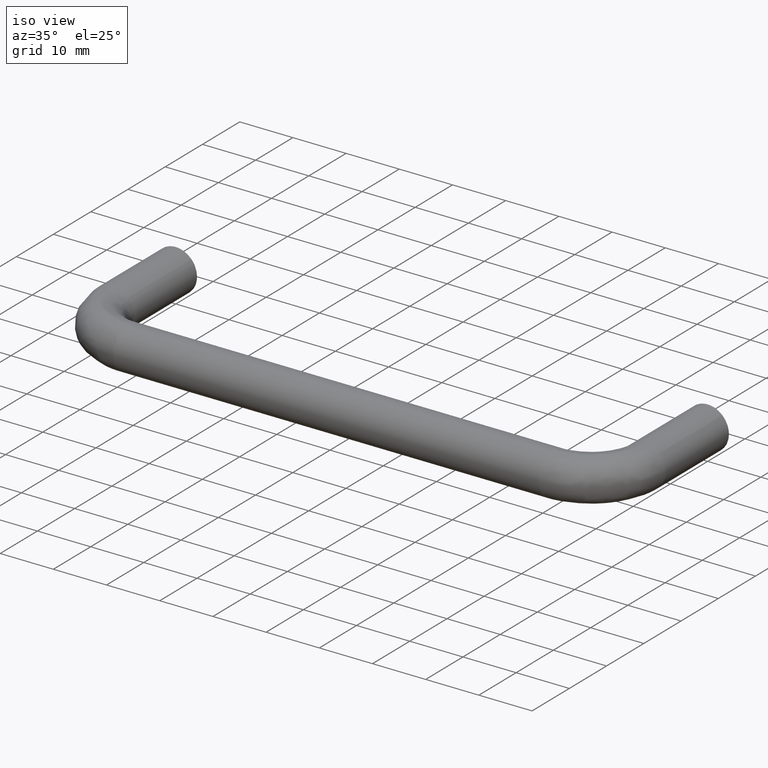
[diagram: clean part render]
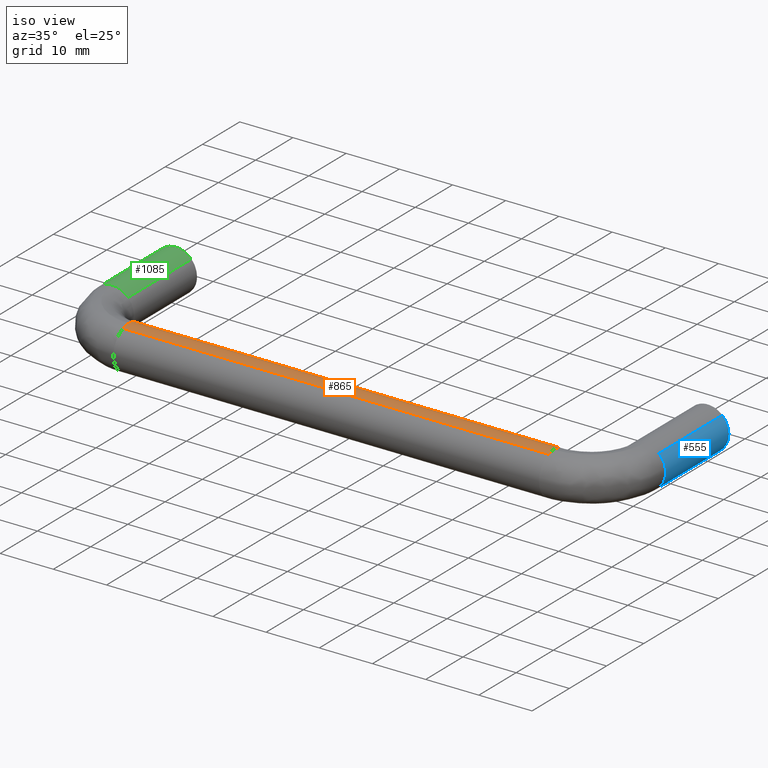
[diagram: same view with three faces highlighted in distinct colors, each labeled with its STEP entity id]
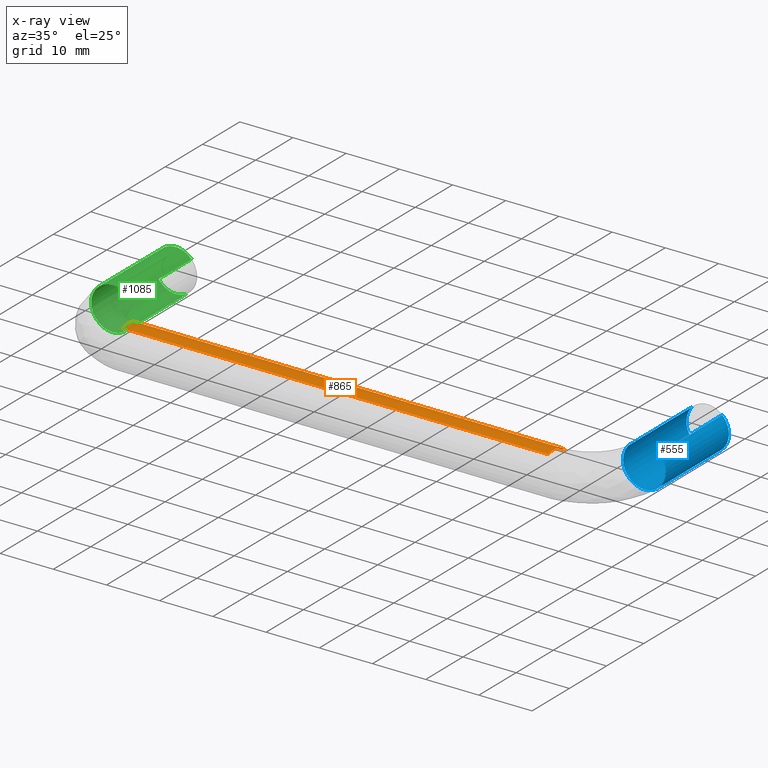
[diagram: x-ray of the same camera — body ghosted, the three highlighted faces saturated]
A machine part, iso view with three faces highlighted in distinct colors.
The next image is the same camera in x-ray (body ghosted, the three faces saturated) — at least one of them is partly hidden behind the body in this view.
Their STEP definitions:

[orange] entity #865 — the highlighted face is a freeform B-spline surface patch.
#646=CARTESIAN_POINT('',(90.000000000598845,-28.486157657465750,3.713668726938179));
#647=VERTEX_POINT('',#646);
#663=CARTESIAN_POINT('',(10.0,-28.486157657653290,3.713668727363614));
#664=VERTEX_POINT('',#663);
#665=CARTESIAN_POINT('',(10.0,-28.486157657653290,3.713668727363614));
#666=CARTESIAN_POINT('',(90.000000000598845,-28.486157657465750,3.713668726938179));
#667=QUASI_UNIFORM_CURVE('',1,(#665,#666),.UNSPECIFIED.,.F.,.U.);
#668=EDGE_CURVE('',#664,#647,#667,.T.);
#717=CARTESIAN_POINT('',(9.999999999858698,-24.050890421757479,2.702360578255077));
#718=VERTEX_POINT('',#717);
#732=CARTESIAN_POINT('',(90.0,-24.050890144235758,2.702360275506146));
#733=VERTEX_POINT('',#732);
#734=CARTESIAN_POINT('',(9.999999999858698,-24.050890421757479,2.702360578255077));
#735=CARTESIAN_POINT('',(90.0,-24.050890144235758,2.702360275506146));
#736=QUASI_UNIFORM_CURVE('',1,(#734,#735),.UNSPECIFIED.,.F.,.U.);
#737=EDGE_CURVE('',#718,#733,#736,.T.);
#787=CARTESIAN_POINT('',(7.999999999193853,-24.050890652759509,2.702360830462641));
#788=CARTESIAN_POINT('',(7.999999999193853,-25.918976159314109,4.741018424489972));
#789=CARTESIAN_POINT('',(7.999999999193853,-28.486157657633822,3.713668727371406));
#790=CARTESIAN_POINT('',(92.050000000972318,-24.050890652759499,2.702360830462641));
#791=CARTESIAN_POINT('',(92.050000000972332,-25.918976159314095,4.741018424489972));
#792=CARTESIAN_POINT('',(92.050000000972332,-28.486157657633807,3.713668727371406));
#800=(BOUNDED_SURFACE()B_SPLINE_SURFACE(2,1,((#787,#790),(#788,#791),(#789,#792)),.UNSPECIFIED.,.F.,.F.,.U.)B_SPLINE_SURFACE_WITH_KNOTS((3,3),(2,2),(0.0,4.987546998387768),(0.0,84.050000001778471),.UNSPECIFIED.)GEOMETRIC_REPRESENTATION_ITEM()RATIONAL_B_SPLINE_SURFACE(((1.0,1.0),(0.777401153701776,0.777401153701776),(0.893152553776853,0.893152553776853)))REPRESENTATION_ITEM('')SURFACE());
#801=CARTESIAN_POINT('',(90.000000000928935,-27.100520385913359,3.998736757029128));
#802=VERTEX_POINT('',#801);
#803=CARTESIAN_POINT('',(90.000000000928935,-27.100520385913359,3.998736757029128));
#804=CARTESIAN_POINT('',(90.000000000757794,-27.818947172575747,3.980676918332561));
#805=CARTESIAN_POINT('',(90.000000000598845,-28.486157657465750,3.713668726938180));
#813=(BOUNDED_CURVE()B_SPLINE_CURVE(2,(#803,#804,#805),.UNSPECIFIED.,.F.,.U.)B_SPLINE_CURVE_WITH_KNOTS((3,3),(0.754420108592513,0.813083199559746),.UNSPECIFIED.)CURVE()GEOMETRIC_REPRESENTATION_ITEM()RATIONAL_B_SPLINE_CURVE((0.989826156862626,0.923528355540182,0.889484969979010))REPRESENTATION_ITEM(''));
#814=EDGE_CURVE('',#802,#647,#813,.T.);
#815=ORIENTED_EDGE('',*,*,#814,.F.);
#816=CARTESIAN_POINT('',(90.0,-24.050890144235755,2.702360275506146));
#817=CARTESIAN_POINT('',(90.0,-25.239956977990349,4.000000000000000));
#818=CARTESIAN_POINT('',(90.0,-27.0,4.0));
#819=CARTESIAN_POINT('',(90.0,-27.050268132635487,4.0));
#820=CARTESIAN_POINT('',(90.000000000928935,-27.100520385913359,3.998736757029128));
#828=(BOUNDED_CURVE()B_SPLINE_CURVE(2,(#816,#817,#818,#819,#820),.UNSPECIFIED.,.F.,.U.)B_SPLINE_CURVE_WITH_KNOTS((3,2,3),(0.618415152269411,0.750000000000000,0.754420108592512),.UNSPECIFIED.)CURVE()GEOMETRIC_REPRESENTATION_ITEM()RATIONAL_B_SPLINE_CURVE((0.853959787850789,0.845838761604440,1.0,0.994821520667336,0.989826156862628))REPRESENTATION_ITEM(''));
#829=EDGE_CURVE('',#733,#802,#828,.T.);
#830=ORIENTED_EDGE('',*,*,#829,.F.);
#831=ORIENTED_EDGE('',*,*,#737,.F.);
#832=CARTESIAN_POINT('',(9.999999999468937,-26.949735839678869,3.999684176805364));
#833=VERTEX_POINT('',#832);
#834=CARTESIAN_POINT('',(9.999999999858700,-24.050890421757479,2.702360578255077));
#835=CARTESIAN_POINT('',(9.999999999701544,-25.219746271860032,3.977943341651938));
#836=CARTESIAN_POINT('',(9.999999999468937,-26.949735839678869,3.999684176805364));
#844=(BOUNDED_CURVE()B_SPLINE_CURVE(2,(#834,#835,#836),.UNSPECIFIED.,.F.,.U.)B_SPLINE_CURVE_WITH_KNOTS((3,3),(0.618415183263736,0.747784295852456),.UNSPECIFIED.)CURVE()GEOMETRIC_REPRESENTATION_ITEM()RATIONAL_B_SPLINE_CURVE((0.853959784025043,0.845975543956472,0.994854295484574))REPRESENTATION_ITEM(''));
#845=EDGE_CURVE('',#718,#833,#844,.T.);
#846=ORIENTED_EDGE('',*,*,#845,.T.);
#847=CARTESIAN_POINT('',(9.999999999468937,-26.949735839678869,3.999684176805364));
#848=CARTESIAN_POINT('',(10.0,-26.974866927244626,4.0));
#849=CARTESIAN_POINT('',(10.0,-27.0,4.0));
#850=CARTESIAN_POINT('',(10.000000000000002,-27.770661904316537,4.000000000000000));
#851=CARTESIAN_POINT('',(10.0,-28.486157657653298,3.713668727363614));
#859=(BOUNDED_CURVE()B_SPLINE_CURVE(2,(#847,#848,#849,#850,#851),.UNSPECIFIED.,.F.,.U.)B_SPLINE_CURVE_WITH_KNOTS((3,2,3),(0.747784295852456,0.750000000000000,0.813083199462623),.UNSPECIFIED.)CURVE()GEOMETRIC_REPRESENTATION_ITEM()RATIONAL_B_SPLINE_CURVE((0.994854295484574,0.997404141121150,1.0,0.926093434625365,0.889484970091734))REPRESENTATION_ITEM(''));
#860=EDGE_CURVE('',#833,#664,#859,.T.);
#861=ORIENTED_EDGE('',*,*,#860,.T.);
#862=ORIENTED_EDGE('',*,*,#668,.T.);
#863=EDGE_LOOP('',(#815,#830,#831,#846,#861,#862));
#864=FACE_OUTER_BOUND('',#863,.T.);
#865=ADVANCED_FACE('',(#864),#800,.T.);

[blue] entity #555 — the highlighted face is a freeform B-spline surface patch.
#408=CARTESIAN_POINT('',(102.753418302775000,-17.425000001025509,2.901497484049150));
#409=CARTESIAN_POINT('',(105.654915786824180,-17.425000001025499,0.148079181274134));
#410=CARTESIAN_POINT('',(102.901497484049100,-17.425000001025509,-2.753418302775015));
#411=CARTESIAN_POINT('',(100.148079181274110,-17.425000001025499,-5.654915786824165));
#412=CARTESIAN_POINT('',(97.246581697224983,-17.425000001025509,-2.901497484049150));
#413=CARTESIAN_POINT('',(94.345084213175838,-17.425000001025499,-0.148079181274134));
#414=CARTESIAN_POINT('',(97.098502515950855,-17.425000001025509,2.753418302775015));
#415=CARTESIAN_POINT('',(102.753418302775000,0.435625000025652,2.901497484049150));
#416=CARTESIAN_POINT('',(105.654915786824180,0.435625000025652,0.148079181274134));
#417=CARTESIAN_POINT('',(102.901497484049100,0.435625000025652,-2.753418302775015));
#418=CARTESIAN_POINT('',(100.148079181274110,0.435625000025652,-5.654915786824165));
#419=CARTESIAN_POINT('',(97.246581697224983,0.435625000025652,-2.901497484049150));
#420=CARTESIAN_POINT('',(94.345084213175838,0.435625000025653,-0.148079181274134));
#421=CARTESIAN_POINT('',(97.098502515950855,0.435625000025653,2.753418302775015));
#429=(BOUNDED_SURFACE()B_SPLINE_SURFACE(2,1,((#408,#415),(#409,#416),(#410,#417),(#411,#418),(#412,#419),(#413,#420),(#414,#421)),.UNSPECIFIED.,.F.,.F.,.U.)B_SPLINE_SURFACE_WITH_KNOTS((3,2,2,3),(2,2),(0.0,6.627416997969532,13.254833995939061,19.882250993908599),(0.0,17.860625001051162),.UNSPECIFIED.)GEOMETRIC_REPRESENTATION_ITEM()RATIONAL_B_SPLINE_SURFACE(((1.0,1.0),(0.707106781186548,0.707106781186548),(1.0,1.0),(0.707106781186548,0.707106781186548),(1.0,1.0),(0.707106781186548,0.707106781186548),(1.0,1.0)))REPRESENTATION_ITEM('')SURFACE());
#430=CARTESIAN_POINT('',(102.753417907465210,3.966272E-014,2.901497859184077));
#431=VERTEX_POINT('',#430);
#432=CARTESIAN_POINT('',(104.0,1.387779E-014,0.0));
#433=VERTEX_POINT('',#432);
#434=CARTESIAN_POINT('',(102.753417907465190,3.966272E-014,2.901497859184078));
#435=CARTESIAN_POINT('',(104.000000000000030,1.387779E-014,1.718536269434938));
#436=CARTESIAN_POINT('',(104.0,1.387779E-014,0.0));
#444=(BOUNDED_CURVE()B_SPLINE_CURVE(2,(#434,#435,#436),.UNSPECIFIED.,.F.,.U.)B_SPLINE_CURVE_WITH_KNOTS((3,3),(0.871049485536956,1.0),.UNSPECIFIED.)CURVE()GEOMETRIC_REPRESENTATION_ITEM()RATIONAL_B_SPLINE_CURVE((0.853699664414640,0.848925075005074,1.0))REPRESENTATION_ITEM(''));
#445=EDGE_CURVE('',#431,#433,#444,.T.);
#446=ORIENTED_EDGE('',*,*,#445,.F.);
#447=CARTESIAN_POINT('',(102.753417296883400,-17.000000000319861,2.901498437969774));
#448=VERTEX_POINT('',#447);
#449=CARTESIAN_POINT('',(102.753417296883400,-17.000000000319861,2.901498437969774));
#450=CARTESIAN_POINT('',(102.753417907465210,3.966272E-014,2.901497859184077));
#451=QUASI_UNIFORM_CURVE('',1,(#449,#450),.UNSPECIFIED.,.F.,.U.);
#452=EDGE_CURVE('',#448,#431,#451,.T.);
#453=ORIENTED_EDGE('',*,*,#452,.F.);
#454=CARTESIAN_POINT('',(104.0,-17.0,0.0));
#455=VERTEX_POINT('',#454);
#456=CARTESIAN_POINT('',(102.753417296883380,-17.000000000319858,2.901498437969774));
#457=CARTESIAN_POINT('',(104.000000000000010,-17.000000000000004,1.718536444349027));
#458=CARTESIAN_POINT('',(104.0,-17.0,0.0));
#466=(BOUNDED_CURVE()B_SPLINE_CURVE(2,(#456,#457,#458),.UNSPECIFIED.,.F.,.U.)B_SPLINE_CURVE_WITH_KNOTS((3,3),(0.871049474395075,1.0),.UNSPECIFIED.)CURVE()GEOMETRIC_REPRESENTATION_ITEM()RATIONAL_B_SPLINE_CURVE((0.853699665239731,0.848925061951548,1.0))REPRESENTATION_ITEM(''));
#467=EDGE_CURVE('',#448,#455,#466,.T.);
#468=ORIENTED_EDGE('',*,*,#467,.T.);
#469=CARTESIAN_POINT('',(99.899479618209057,-16.999999999993349,-3.998736757132757));
#470=VERTEX_POINT('',#469);
#471=CARTESIAN_POINT('',(104.0,-17.0,0.0));
#472=CARTESIAN_POINT('',(104.000000000000030,-17.000000000000004,-4.000000000000000));
#473=CARTESIAN_POINT('',(100.0,-17.0,-4.0));
#474=CARTESIAN_POINT('',(99.949731871488893,-17.0,-4.000000000000001));
#475=CARTESIAN_POINT('',(99.899479618209057,-16.999999999993353,-3.998736757132757));
#483=(BOUNDED_CURVE()B_SPLINE_CURVE(2,(#471,#472,#473,#474,#475),.UNSPECIFIED.,.F.,.U.)B_SPLINE_CURVE_WITH_KNOTS((3,2,3),(0.0,0.250000000000000,0.254420108231731),.UNSPECIFIED.)CURVE()GEOMETRIC_REPRESENTATION_ITEM()RATIONAL_B_SPLINE_CURVE((1.0,0.707106781186548,1.0,0.994821521090018,0.989826157678098))REPRESENTATION_ITEM(''));
#484=EDGE_CURVE('',#455,#470,#483,.T.);
#485=ORIENTED_EDGE('',*,*,#484,.T.);
#486=CARTESIAN_POINT('',(96.0,-17.0,0.0));
#487=VERTEX_POINT('',#486);
#488=CARTESIAN_POINT('',(99.899479618209057,-16.999999999993356,-3.998736757132757));
#489=CARTESIAN_POINT('',(96.0,-17.0,-3.900711504688282));
#490=CARTESIAN_POINT('',(96.0,-17.0,0.0));
#498=(BOUNDED_CURVE()B_SPLINE_CURVE(2,(#488,#489,#490),.UNSPECIFIED.,.F.,.U.)B_SPLINE_CURVE_WITH_KNOTS((3,3),(0.254420108231731,0.500000000000000),.UNSPECIFIED.)CURVE()GEOMETRIC_REPRESENTATION_ITEM()RATIONAL_B_SPLINE_CURVE((0.989826157678098,0.712285260096530,1.0))REPRESENTATION_ITEM(''));
#499=EDGE_CURVE('',#470,#487,#498,.T.);
#500=ORIENTED_EDGE('',*,*,#499,.T.);
#501=CARTESIAN_POINT('',(97.098502148308370,-17.000000000000011,2.753417915360570));
#502=VERTEX_POINT('',#501);
#503=CARTESIAN_POINT('',(96.0,-17.0,0.0));
#504=CARTESIAN_POINT('',(96.000000000000014,-17.0,1.595837564795785));
#505=CARTESIAN_POINT('',(97.098502148308370,-17.000000000000011,2.753417915360570));
#513=(BOUNDED_CURVE()B_SPLINE_CURVE(2,(#503,#504,#505),.UNSPECIFIED.,.F.,.U.)B_SPLINE_CURVE_WITH_KNOTS((3,3),(0.500000000000000,0.621049486358276),.UNSPECIFIED.)CURVE()GEOMETRIC_REPRESENTATION_ITEM()RATIONAL_B_SPLINE_CURVE((1.0,0.858181705219238,0.853699664353818))REPRESENTATION_ITEM(''));
#514=EDGE_CURVE('',#487,#502,#513,.T.);
#515=ORIENTED_EDGE('',*,*,#514,.T.);
#516=CARTESIAN_POINT('',(97.098502152738334,1.501577E-014,2.753417920028775));
#517=VERTEX_POINT('',#516);
#518=CARTESIAN_POINT('',(97.098502148308370,-17.000000000000011,2.753417915360570));
#519=CARTESIAN_POINT('',(97.098502152738334,1.501577E-014,2.753417920028775));
#520=QUASI_UNIFORM_CURVE('',1,(#518,#519),.UNSPECIFIED.,.F.,.U.);
#521=EDGE_CURVE('',#502,#517,#520,.T.);
#522=ORIENTED_EDGE('',*,*,#521,.T.);
#523=CARTESIAN_POINT('',(96.0,1.387779E-014,0.0));
#524=VERTEX_POINT('',#523);
#525=CARTESIAN_POINT('',(96.0,1.387779E-014,0.0));
#526=CARTESIAN_POINT('',(96.0,1.387779E-014,1.595837572255693));
#527=CARTESIAN_POINT('',(97.098502152738334,1.501577E-014,2.753417920028775));
#535=(BOUNDED_CURVE()B_SPLINE_CURVE(2,(#525,#526,#527),.UNSPECIFIED.,.F.,.U.)B_SPLINE_CURVE_WITH_KNOTS((3,3),(0.500000000000000,0.621049486843885),.UNSPECIFIED.)CURVE()GEOMETRIC_REPRESENTATION_ITEM()RATIONAL_B_SPLINE_CURVE((1.0,0.858181704650312,0.853699664317857))REPRESENTATION_ITEM(''));
#536=EDGE_CURVE('',#524,#517,#535,.T.);
#537=ORIENTED_EDGE('',*,*,#536,.F.);
#538=CARTESIAN_POINT('',(104.0,1.387779E-014,0.0));
#539=CARTESIAN_POINT('',(104.000000000000030,1.387779E-014,-4.000000000000000));
#540=CARTESIAN_POINT('',(100.0,1.387779E-014,-4.0));
#541=CARTESIAN_POINT('',(96.0,1.387779E-014,-4.000000000000000));
#542=CARTESIAN_POINT('',(96.0,1.387779E-014,0.0));
#550=(BOUNDED_CURVE()B_SPLINE_CURVE(2,(#538,#539,#540,#541,#542),.UNSPECIFIED.,.F.,.U.)B_SPLINE_CURVE_WITH_KNOTS((3,2,3),(0.0,0.250000000000000,0.500000000000000),.UNSPECIFIED.)CURVE()GEOMETRIC_REPRESENTATION_ITEM()RATIONAL_B_SPLINE_CURVE((1.0,0.707106781186548,1.0,0.707106781186548,1.0))REPRESENTATION_ITEM(''));
#551=EDGE_CURVE('',#433,#524,#550,.T.);
#552=ORIENTED_EDGE('',*,*,#551,.F.);
#553=EDGE_LOOP('',(#446,#453,#468,#485,#500,#515,#522,#537,#552));
#554=FACE_OUTER_BOUND('',#553,.T.);
#555=ADVANCED_FACE('',(#554),#429,.T.);

[green] entity #1085 — the highlighted face is a freeform B-spline surface patch.
#888=CARTESIAN_POINT('',(1.936878981321603,-17.0,-3.499785680825983));
#889=VERTEX_POINT('',#888);
#905=CARTESIAN_POINT('',(1.936875010627283,0.0,-3.499787878313128));
#906=VERTEX_POINT('',#905);
#907=CARTESIAN_POINT('',(1.936875010627283,0.0,-3.499787878313128));
#908=CARTESIAN_POINT('',(1.936878981321603,-17.0,-3.499785680825983));
#909=QUASI_UNIFORM_CURVE('',1,(#907,#908),.UNSPECIFIED.,.F.,.U.);
#910=EDGE_CURVE('',#906,#889,#909,.T.);
#927=CARTESIAN_POINT('',(2.949109852878311,8.326673E-017,2.702360278655588));
#928=VERTEX_POINT('',#927);
#942=CARTESIAN_POINT('',(2.949109584599412,-17.000000000061380,2.702360571402150));
#943=VERTEX_POINT('',#942);
#944=CARTESIAN_POINT('',(2.949109852878311,8.326673E-017,2.702360278655588));
#945=CARTESIAN_POINT('',(2.949109584599412,-17.000000000061380,2.702360571402150));
#946=QUASI_UNIFORM_CURVE('',1,(#944,#945),.UNSPECIFIED.,.F.,.U.);
#947=EDGE_CURVE('',#928,#943,#946,.T.);
#965=CARTESIAN_POINT('',(2.949109347240495,0.425000000038912,2.702360830462641));
#966=CARTESIAN_POINT('',(0.246748516777854,0.425000000038912,5.651470177703135));
#967=CARTESIAN_POINT('',(-2.702360830462641,0.425000000038911,2.949109347240495));
#968=CARTESIAN_POINT('',(-5.651470177703135,0.425000000038911,0.246748516777854));
#969=CARTESIAN_POINT('',(-2.949109347240495,0.425000000038911,-2.702360830462641));
#970=CARTESIAN_POINT('',(-0.820216833946429,0.425000000038911,-5.025639328083180));
#971=CARTESIAN_POINT('',(1.936878929017517,0.425000000038912,-3.499785709772521));
#972=CARTESIAN_POINT('',(2.949109347240497,-17.435625001596300,2.702360830462641));
#973=CARTESIAN_POINT('',(0.246748516777857,-17.435625001596296,5.651470177703135));
#974=CARTESIAN_POINT('',(-2.702360830462638,-17.435625001596300,2.949109347240495));
#975=CARTESIAN_POINT('',(-5.651470177703134,-17.435625001596296,0.246748516777854));
#976=CARTESIAN_POINT('',(-2.949109347240493,-17.435625001596300,-2.702360830462641));
#977=CARTESIAN_POINT('',(-0.820216833946427,-17.435625001596300,-5.025639328083180));
#978=CARTESIAN_POINT('',(1.936878929017520,-17.435625001596303,-3.499785709772521));
#986=(BOUNDED_SURFACE()B_SPLINE_SURFACE(2,1,((#965,#972),(#966,#973),(#967,#974),(#968,#975),(#969,#976),(#970,#977),(#971,#978)),.UNSPECIFIED.,.F.,.F.,.U.)B_SPLINE_SURFACE_WITH_KNOTS((3,2,2,3),(2,2),(0.0,6.627416997969519,13.254833995939039,18.821864274233430),(0.0,17.860625001635210),.UNSPECIFIED.)GEOMETRIC_REPRESENTATION_ITEM()RATIONAL_B_SPLINE_SURFACE(((1.0,1.0),(0.707106781186548,0.707106781186548),(1.0,1.0),(0.707106781186548,0.707106781186548),(1.0,1.0),(0.753969696196700,0.753969696196700),(0.921270302782944,0.921270302782944)))REPRESENTATION_ITEM('')SURFACE());
#987=CARTESIAN_POINT('',(-0.278933012064626,-17.000000001556419,-3.990262694958886));
#988=VERTEX_POINT('',#987);
#989=CARTESIAN_POINT('',(-0.278933012064626,-17.000000001556419,-3.990262694958886));
#990=CARTESIAN_POINT('',(-0.139636469282808,-17.000000000000004,-4.0));
#991=CARTESIAN_POINT('',(2.081831E-015,-17.0,-4.0));
#992=CARTESIAN_POINT('',(1.033031675053439,-17.000000000000004,-4.0));
#993=CARTESIAN_POINT('',(1.936878981321603,-17.000000000000007,-3.499785680825983));
#1001=(BOUNDED_CURVE()B_SPLINE_CURVE(2,(#989,#990,#991,#992,#993),.UNSPECIFIED.,.F.,.U.)B_SPLINE_CURVE_WITH_KNOTS((3,2,3),(0.237833686038370,0.250000000000000,0.332484293570193),.UNSPECIFIED.)CURVE()GEOMETRIC_REPRESENTATION_ITEM()RATIONAL_B_SPLINE_CURVE((0.972879875336366,0.985746276570732,1.0,0.903363639018690,0.870495133787280))REPRESENTATION_ITEM(''));
#1002=EDGE_CURVE('',#988,#889,#1001,.T.);
#1003=ORIENTED_EDGE('',*,*,#1002,.F.);
#1004=CARTESIAN_POINT('',(-3.999999999999998,-17.0,0.0));
#1005=VERTEX_POINT('',#1004);
#1006=CARTESIAN_POINT('',(-3.999999999999998,-17.0,0.0));
#1007=CARTESIAN_POINT('',(-4.000000000000000,-17.0,-3.730147378265797));
#1008=CARTESIAN_POINT('',(-0.278933012064626,-17.000000001556419,-3.990262694958886));
#1016=(BOUNDED_CURVE()B_SPLINE_CURVE(2,(#1006,#1007,#1008),.UNSPECIFIED.,.F.,.U.)B_SPLINE_CURVE_WITH_KNOTS((3,3),(0.0,0.237833686038370),.UNSPECIFIED.)CURVE()GEOMETRIC_REPRESENTATION_ITEM()RATIONAL_B_SPLINE_CURVE((1.0,0.721360504615815,0.972879875336366))REPRESENTATION_ITEM(''));
#1017=EDGE_CURVE('',#1005,#988,#1016,.T.);
#1018=ORIENTED_EDGE('',*,*,#1017,.F.);
#1019=CARTESIAN_POINT('',(0.050264159732992,-17.000000000230710,3.999684176812755));
#1020=VERTEX_POINT('',#1019);
#1021=CARTESIAN_POINT('',(0.050264159732992,-17.000000000230706,3.999684176812755));
#1022=CARTESIAN_POINT('',(0.025133072167163,-17.0,4.0));
#1023=CARTESIAN_POINT('',(2.081831E-015,-17.0,4.0));
#1024=CARTESIAN_POINT('',(-3.999999999999998,-17.000000000000004,4.000000000000000));
#1025=CARTESIAN_POINT('',(-3.999999999999998,-17.0,0.0));
#1033=(BOUNDED_CURVE()B_SPLINE_CURVE(2,(#1021,#1022,#1023,#1024,#1025),.UNSPECIFIED.,.F.,.U.)B_SPLINE_CURVE_WITH_KNOTS((3,2,3),(0.747784295904177,0.750000000000000,1.0),.UNSPECIFIED.)CURVE()GEOMETRIC_REPRESENTATION_ITEM()RATIONAL_B_SPLINE_CURVE((0.994854295603617,0.997404141181745,1.0,0.707106781186548,1.0))REPRESENTATION_ITEM(''));
#1034=EDGE_CURVE('',#1020,#1005,#1033,.T.);
#1035=ORIENTED_EDGE('',*,*,#1034,.F.);
#1036=CARTESIAN_POINT('',(2.949109584599412,-17.000000000061373,2.702360571402150));
#1037=CARTESIAN_POINT('',(1.780253739030167,-17.000000000129656,3.977943342023934));
#1038=CARTESIAN_POINT('',(0.050264159732992,-17.000000000230703,3.999684176812756));
#1046=(BOUNDED_CURVE()B_SPLINE_CURVE(2,(#1036,#1037,#1038),.UNSPECIFIED.,.F.,.U.)B_SPLINE_CURVE_WITH_KNOTS((3,3),(0.618415182562256,0.747784295904177),.UNSPECIFIED.)CURVE()GEOMETRIC_REPRESENTATION_ITEM()RATIONAL_B_SPLINE_CURVE((0.853959784111629,0.845975543146013,0.994854295603615))REPRESENTATION_ITEM(''));
#1047=EDGE_CURVE('',#943,#1020,#1046,.T.);
#1048=ORIENTED_EDGE('',*,*,#1047,.F.);
#1049=ORIENTED_EDGE('',*,*,#947,.F.);
#1050=CARTESIAN_POINT('',(-4.0,0.0,0.0));
#1051=VERTEX_POINT('',#1050);
#1052=CARTESIAN_POINT('',(2.949109852878311,8.326673E-017,2.702360278655588));
#1053=CARTESIAN_POINT('',(1.760043016910884,0.0,4.000000000000001));
#1054=CARTESIAN_POINT('',(0.0,0.0,4.0));
#1055=CARTESIAN_POINT('',(-4.000000000000000,0.0,4.000000000000000));
#1056=CARTESIAN_POINT('',(-4.0,0.0,0.0));
#1064=(BOUNDED_CURVE()B_SPLINE_CURVE(2,(#1052,#1053,#1054,#1055,#1056),.UNSPECIFIED.,.F.,.U.)B_SPLINE_CURVE_WITH_KNOTS((3,2,3),(0.618415152591841,0.750000000000000,1.0),.UNSPECIFIED.)CURVE()GEOMETRIC_REPRESENTATION_ITEM()RATIONAL_B_SPLINE_CURVE((0.853959787810991,0.845838761982189,1.0,0.707106781186548,1.0))REPRESENTATION_ITEM(''));
#1065=EDGE_CURVE('',#928,#1051,#1064,.T.);
#1066=ORIENTED_EDGE('',*,*,#1065,.T.);
#1067=CARTESIAN_POINT('',(-4.0,0.0,0.0));
#1068=CARTESIAN_POINT('',(-4.000000000000000,0.0,-4.000000000000000));
#1069=CARTESIAN_POINT('',(0.0,0.0,-4.0));
#1070=CARTESIAN_POINT('',(1.033029222721738,0.0,-4.000000000000001));
#1071=CARTESIAN_POINT('',(1.936875010627282,0.0,-3.499787878313128));
#1079=(BOUNDED_CURVE()B_SPLINE_CURVE(2,(#1067,#1068,#1069,#1070,#1071),.UNSPECIFIED.,.F.,.U.)B_SPLINE_CURVE_WITH_KNOTS((3,2,3),(0.0,0.250000000000000,0.332484116681718),.UNSPECIFIED.)CURVE()GEOMETRIC_REPRESENTATION_ITEM()RATIONAL_B_SPLINE_CURVE((1.0,0.707106781186548,1.0,0.903363846256429,0.870495274761316))REPRESENTATION_ITEM(''));
#1080=EDGE_CURVE('',#1051,#906,#1079,.T.);
#1081=ORIENTED_EDGE('',*,*,#1080,.T.);
#1082=ORIENTED_EDGE('',*,*,#910,.T.);
#1083=EDGE_LOOP('',(#1003,#1018,#1035,#1048,#1049,#1066,#1081,#1082));
#1084=FACE_OUTER_BOUND('',#1083,.T.);
#1085=ADVANCED_FACE('',(#1084),#986,.T.);